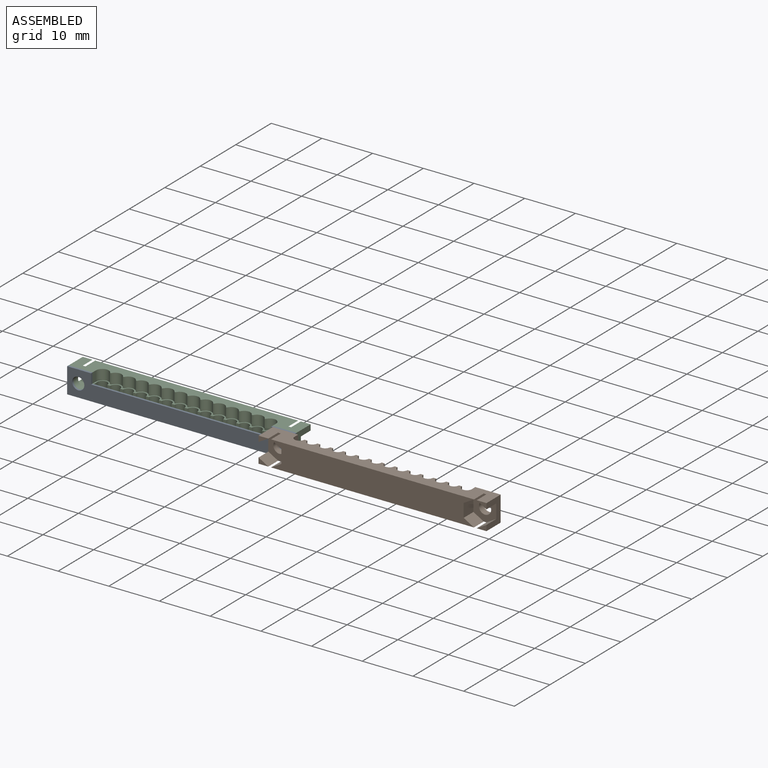
[diagram: assembled view]
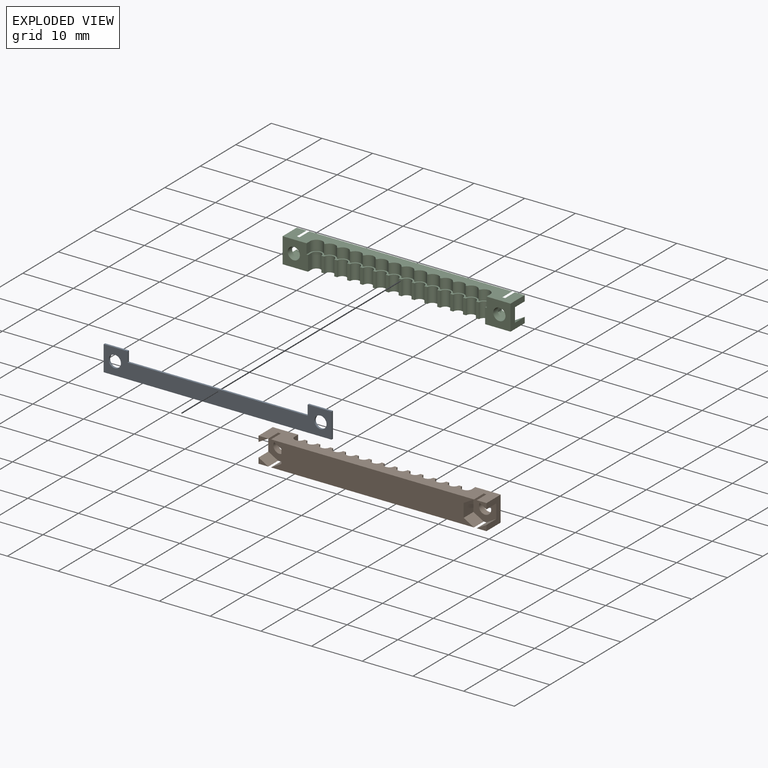
[diagram: exploded view]
GUIDED TOUR — MATED ASSEMBLY (Onshape document f2cbd46b93b3edd1e1eb403c, AutoMate assembly f2cbd46b93b3edd1e1eb403c_8484f095c61ec2286b9c4b33_8a40d567f7243d9332796a5d_default)

This assembly has 3 components, labeled P0..P2 below (a component is one placed occurrence of a part; the same part can appear more than once), held together by 2 mates. A mate is a constraint between two components; its type names the relative motion it leaves free:
  FASTENED — locks the two components together rigidly (no relative motion).
Axis/direction vectors are unit vectors and 'through' points are millimeter coordinates, both in the assembly's world frame.

MATES
  1. FASTENED "Fastened 1": P2 <-> P0, direction (0.000, -1.000, 0.000) through (-23.79, -25.65, -9.31) mm
  2. FASTENED "Fastened 2": P1 <-> P0, direction (0.000, 1.000, 0.000) through (16.77, -26.05, -9.31) mm

ASSEMBLY ORDER
  1. P1 — the base component [order verified]
  2. P0 [order verified]
  3. P2 [order verified]
Order-tag legend:
  [order verified] — this step's position reverses a verified removal order: the component was checked to insert without passing through the ones already placed.

Of the 3 components, 3 carry the full construction recipe — the FeatureScript program that regenerates the part's solid from scratch; the rest are supplied as boundary geometry only.
Each toured component is shown spotlighted twice — in the assembled view, then in the exploded view, where a leader line traces a displaced component back to its assembled socket (saturated green if recipe-attached, orange if geometry-only; every other component desaturated gray) — followed by its recipe or geometry summary and the mates that hold it.
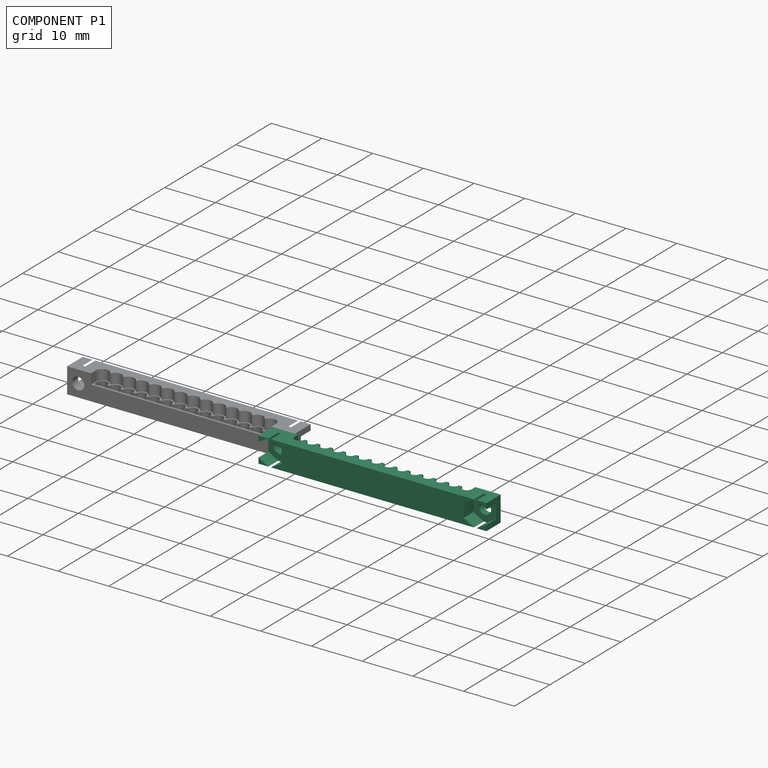
[diagram: component P1 — assembled]
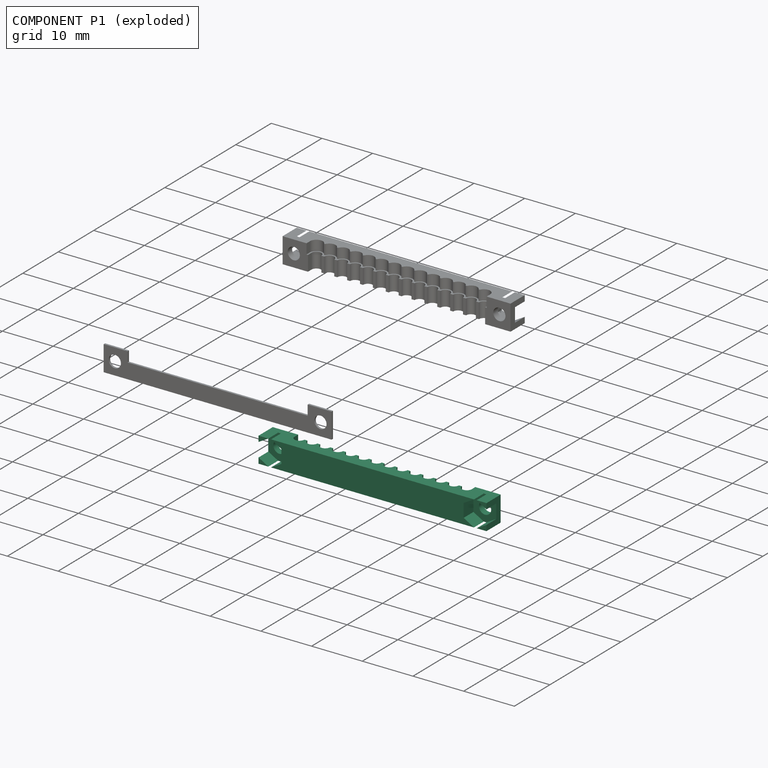
[diagram: component P1 — exploded]
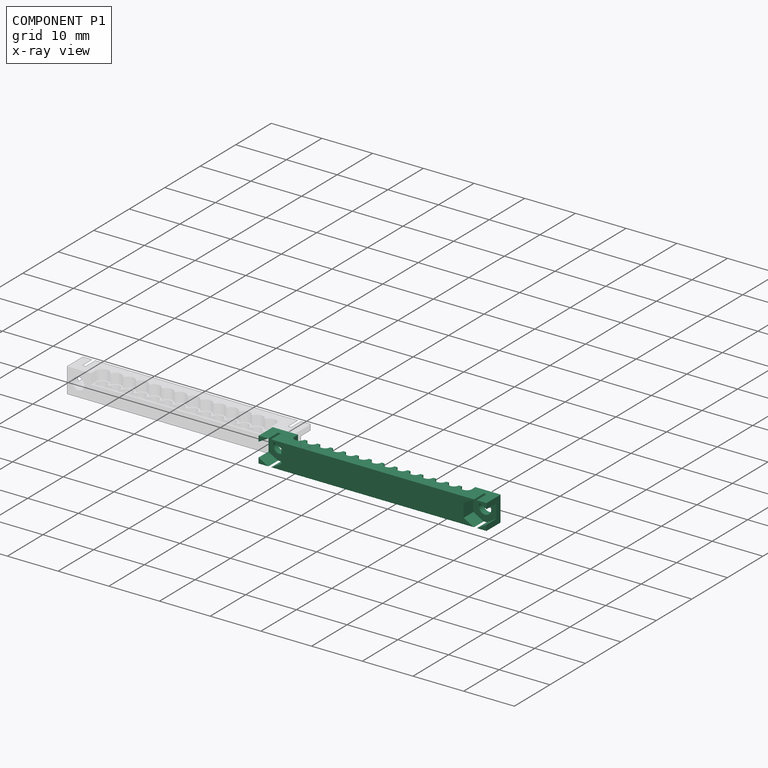
[diagram: component P1 — x-ray view]
COMPONENT P1 — recipe-attached (CADFS 00837993, mesh-verified: the recipe's output STEP matches this component's geometry to below the mesh-comparison resolution (tessellation chordal tolerance ~0.0681 mm)).
Held by: FASTENED mate "Fastened 2" to P0.
Construction recipe (FeatureScript — the CAD program that rebuilds this solid; sketch coordinates are in the units given by the * unit suffixes, e.g. mm):

FeatureScript 1511;
import(path : "onshape/std/geometry.fs", version : "1511.0");
import(path : "onshape/std/common.fs", version : "1511.0");
const mm = millimeter;
const VERTEX = EntityType.VERTEX;
const EDGE = EntityType.EDGE;
const FACE = EntityType.FACE;
const BODY = EntityType.BODY;
function v(x, y){return vector(x, y);}
function OD(order){return orderDisambiguation(order);}
function OSD(set){return originalSetDisambiguation(set);}
function TD(topology){return topologyDisambiguation(topology);}
function TDD(query){return trueDependencyDisambiguation(query);}
function sQuery(a, b, c) {return sketchEntityQuery(a, b, c);}

annotation { "Feature Type Name" : "Feature", "Feature Type Description" : "" }
export const myFeature = defineFeature(function(context is Context, id is Id, definition is map)
    precondition{}
    {
        {
            var Q0;
            Q0=qCreatedBy(makeId("Front.planeOp"),FACE);
            var sketch = newSketch(context, id + "F0", { "sketchPlane" : qUnion([Q0])});
            skCircle(sketch, "E0", {"center": v(-1.27, 1.27) * mm, "radius": 0.97 * mm});
            skCircle(sketch, "E1", {"center": v(1.27, 1.27) * mm, "radius": 0.97 * mm});
            skCircle(sketch, "E2", {"center": v(3.8, 1.27) * mm, "radius": 0.97 * mm});
            skCircle(sketch, "E3", {"center": v(6.35, 1.27) * mm, "radius": 0.97 * mm});
            skCircle(sketch, "E4", {"center": v(8.9, 1.27) * mm, "radius": 0.97 * mm});
            skCircle(sketch, "E5", {"center": v(11.43, 1.27) * mm, "radius": 0.97 * mm});
            skCircle(sketch, "E6", {"center": v(13.97, 1.27) * mm, "radius": 0.97 * mm});
            skCircle(sketch, "E7", {"center": v(16.51, 1.27) * mm, "radius": 0.97 * mm});
            skCircle(sketch, "E8", {"center": v(-3.8, 1.27) * mm, "radius": 0.97 * mm});
            skCircle(sketch, "E9", {"center": v(-6.35, 1.27) * mm, "radius": 0.97 * mm});
            skCircle(sketch, "E10", {"center": v(-8.9, 1.27) * mm, "radius": 0.97 * mm});
            skCircle(sketch, "E11", {"center": v(-11.43, 1.27) * mm, "radius": 0.97 * mm});
            skCircle(sketch, "E12", {"center": v(-13.97, 1.27) * mm, "radius": 0.97 * mm});
            skCircle(sketch, "E13", {"center": v(-16.51, 1.27) * mm, "radius": 0.97 * mm});
            skLineSegment(sketch, "E14.bottom", {"start": v(-22.48, 4.27) * mm, "end": v(22.48, 4.27) * mm});
            skLineSegment(sketch, "E14.top", {"start": v(-22.48, 1.27) * mm, "end": v(22.48, 1.27) * mm});
            skLineSegment(sketch, "E14.left", {"start": v(-22.48, 4.27) * mm, "end": v(-22.48, 1.27) * mm});
            skLineSegment(sketch, "E14.right", {"start": v(22.48, 4.27) * mm, "end": v(22.48, 1.27) * mm});
            skSolve(sketch);
        }
        {
            var Q0;
            Q0=makeQuery(id+"F0.imprint","IMPRINT",FACE,{"disambiguationData":[TD([[makeQuery(id+"F0.imprint","IMPRINT",EDGE,{"derivedFrom":sQuery(id+"F0.wireOp",EDGE,"E14.bottom")}),-1.0]])]});
            extrude(context, id + "F1", {"entities" : qUnion([Q0]), "depth" : 5 * mm, "offsetDistance" : 25 * mm});
        }
        {
            var Q0;
            Q0=makeQuery(id+"F1.opExtrude","CAP_FACE",FACE,{"disambiguationData":[OSD([sQuery(id+"F0.wireOp",EDGE,"E0"),sQuery(id+"F0.wireOp",EDGE,"E1"),sQuery(id+"F0.wireOp",EDGE,"E2"),sQuery(id+"F0.wireOp",EDGE,"E3"),sQuery(id+"F0.wireOp",EDGE,"E4"),sQuery(id+"F0.wireOp",EDGE,"E5"),sQuery(id+"F0.wireOp",EDGE,"E6"),sQuery(id+"F0.wireOp",EDGE,"E7"),sQuery(id+"F0.wireOp",EDGE,"E8"),sQuery(id+"F0.wireOp",EDGE,"E9"),sQuery(id+"F0.wireOp",EDGE,"E10"),sQuery(id+"F0.wireOp",EDGE,"E11"),sQuery(id+"F0.wireOp",EDGE,"E12"),sQuery(id+"F0.wireOp",EDGE,"E13"),sQuery(id+"F0.wireOp",EDGE,"E14.bottom"),sQuery(id+"F0.wireOp",EDGE,"E14.top"),sQuery(id+"F0.wireOp",EDGE,"E14.left"),sQuery(id+"F0.wireOp",EDGE,"E14.right")])],"isStart":false});
            var sketch = newSketch(context, id + "F2", { "sketchPlane" : qUnion([Q0])});
            skCircle(sketch, "E15", {"center": v(-16.51, 1.27) * mm, "radius": 1.25 * mm});
            skCircle(sketch, "E16", {"center": v(-13.97, 1.27) * mm, "radius": 1.25 * mm});
            skCircle(sketch, "E17", {"center": v(-11.43, 1.27) * mm, "radius": 1.25 * mm});
            skCircle(sketch, "E18", {"center": v(-8.9, 1.27) * mm, "radius": 1.25 * mm});
            skCircle(sketch, "E19", {"center": v(-6.35, 1.27) * mm, "radius": 1.25 * mm});
            skCircle(sketch, "E20", {"center": v(-3.8, 1.27) * mm, "radius": 1.25 * mm});
            skCircle(sketch, "E21", {"center": v(-1.27, 1.27) * mm, "radius": 1.25 * mm});
            skCircle(sketch, "E22", {"center": v(1.27, 1.27) * mm, "radius": 1.25 * mm});
            skCircle(sketch, "E23", {"center": v(3.8, 1.27) * mm, "radius": 1.25 * mm});
            skCircle(sketch, "E24", {"center": v(6.35, 1.27) * mm, "radius": 1.25 * mm});
            skCircle(sketch, "E25", {"center": v(8.9, 1.27) * mm, "radius": 1.25 * mm});
            skCircle(sketch, "E26", {"center": v(11.43, 1.27) * mm, "radius": 1.25 * mm});
            skCircle(sketch, "E27", {"center": v(13.97, 1.27) * mm, "radius": 1.25 * mm});
            skCircle(sketch, "E28", {"center": v(16.51, 1.27) * mm, "radius": 1.25 * mm});
            skLineSegment(sketch, "E29.bottom", {"start": v(-16.51, 1.27) * mm, "end": v(16.51, 1.27) * mm});
            skLineSegment(sketch, "E29.top", {"start": v(-16.51, 1.77) * mm, "end": v(16.51, 1.77) * mm});
            skLineSegment(sketch, "E29.left", {"start": v(-16.51, 1.27) * mm, "end": v(-16.51, 1.77) * mm});
            skLineSegment(sketch, "E29.right", {"start": v(16.51, 1.27) * mm, "end": v(16.51, 1.77) * mm});
            skSolve(sketch);
        }
        {
            var Q0;
            Q0 = qSketchRegion(id + "F2", true);
            extrude(context, id + "F3", {"entities" : qUnion([Q0]), "operationType" : NewBodyOperationType.REMOVE, "oppositeDirection" : true, "depth" : 2 * mm, "offsetDistance" : 25 * mm});
        }
        {
            var Q0;
            Q0=makeQuery(id+"F1.opExtrude","SWEPT_FACE",FACE,{"disambiguationData":[OSD([sQuery(id+"F0.wireOp",EDGE,"E14.bottom")])]});
            var sketch = newSketch(context, id + "F4", { "sketchPlane" : qUnion([Q0])});
            skCircle(sketch, "E30", {"center": v(20.28, -2.5) * mm, "radius": 2.3 * mm});
            skCircle(sketch, "E31", {"center": v(-20.28, -2.5) * mm, "radius": 2.3 * mm});
            skLineSegment(sketch, "E32", {"start": v(22.58, -3.83) * mm, "end": v(22.58, -1.17) * mm});
            skLineSegment(sketch, "E33", {"start": v(22.58, -1.17) * mm, "end": v(20.28, 0.16) * mm});
            skLineSegment(sketch, "E34", {"start": v(20.28, 0.16) * mm, "end": v(17.98, -1.17) * mm});
            skLineSegment(sketch, "E35", {"start": v(17.98, -1.17) * mm, "end": v(17.98, -3.83) * mm});
            skLineSegment(sketch, "E36", {"start": v(17.98, -3.83) * mm, "end": v(20.28, -5.16) * mm});
            skLineSegment(sketch, "E37", {"start": v(20.28, -5.16) * mm, "end": v(22.58, -3.83) * mm});
            skLineSegment(sketch, "E38", {"start": v(-22.58, -1.17) * mm, "end": v(-22.58, -3.83) * mm});
            skLineSegment(sketch, "E39", {"start": v(-22.58, -3.83) * mm, "end": v(-20.28, -5.16) * mm});
            skLineSegment(sketch, "E40", {"start": v(-20.28, -5.16) * mm, "end": v(-17.98, -3.83) * mm});
            skLineSegment(sketch, "E41", {"start": v(-17.98, -3.83) * mm, "end": v(-17.98, -1.17) * mm});
            skLineSegment(sketch, "E42", {"start": v(-17.98, -1.17) * mm, "end": v(-20.28, 0.16) * mm});
            skLineSegment(sketch, "E43", {"start": v(-20.28, 0.16) * mm, "end": v(-22.58, -1.17) * mm});
            skSolve(sketch);
        }
        {
            var Q0;
            Q0 = qSketchRegion(id + "F4", true);
            extrude(context, id + "F5", {"entities" : qUnion([Q0]), "operationType" : NewBodyOperationType.REMOVE, "oppositeDirection" : true, "depth" : 2.75 * mm, "offsetDistance" : 25 * mm});
        }
        {
            var Q0;
            Q0=qCreatedBy(makeId("Top.planeOp"),FACE);
            var sketch = newSketch(context, id + "F6", { "sketchPlane" : qUnion([Q0])});
            skCircle(sketch, "E44", {"center": v(-20.28, -2.5) * mm, "radius": 1.2 * mm});
            skCircle(sketch, "E45", {"center": v(20.28, -2.5) * mm, "radius": 1.2 * mm});
            skSolve(sketch);
        }
        {
            var Q0;
            Q0=makeQuery(id+"F6.imprint","IMPRINT",FACE,{"disambiguationData":[TD([[makeQuery(id+"F6.imprint","IMPRINT",EDGE,{"derivedFrom":sQuery(id+"F6.wireOp",EDGE,"E44")}),1.0]])]});
            var Q1;
            Q1=makeQuery(id+"F6.imprint","IMPRINT",FACE,{"disambiguationData":[TD([[makeQuery(id+"F6.imprint","IMPRINT",EDGE,{"derivedFrom":sQuery(id+"F6.wireOp",EDGE,"E45")}),1.0]])]});
            extrude(context, id + "F7", {"entities" : qUnion([Q0, Q1]), "operationType" : NewBodyOperationType.REMOVE, "oppositeDirection" : true, "depth" : -5 * mm, "offsetDistance" : 25 * mm});
        }
        {
            var Q0;
            {var subQ0=sQuery(id+"F0.wireOp",EDGE,"E14.top");Q0=makeQuery(id+"F1.opExtrude","SWEPT_FACE",FACE,{"disambiguationData":[OSD([subQ0]),TDD([makeQuery(id+"F0.imprint","IMPRINT",EDGE,{"disambiguationData":[TD([[makeQuery(id+"F0.imprint","INTERSECT",VERTEX,{"derivedFrom":[subQ0,sQuery(id+"F0.wireOp",EDGE,"E14.left")]}),-1.0]])],"derivedFrom":subQ0})])]});}
            var Q1;
            {var subQ0=sQuery(id+"F0.wireOp",EDGE,"E14.top");Q1=makeQuery(id+"F1.opExtrude","SWEPT_FACE",FACE,{"disambiguationData":[OSD([subQ0]),TDD([makeQuery(id+"F0.imprint","IMPRINT",EDGE,{"disambiguationData":[TD([[makeQuery(id+"F0.imprint","INTERSECT",VERTEX,{"derivedFrom":[subQ0,sQuery(id+"F0.wireOp",EDGE,"E14.right")]}),1.0]])],"derivedFrom":subQ0})])]});}
            extrude(context, id + "F8", {"entities" : qUnion([Q0, Q1]), "operationType" : NewBodyOperationType.ADD, "depth" : 1 * mm, "offsetDistance" : 25 * mm});
        }
    });
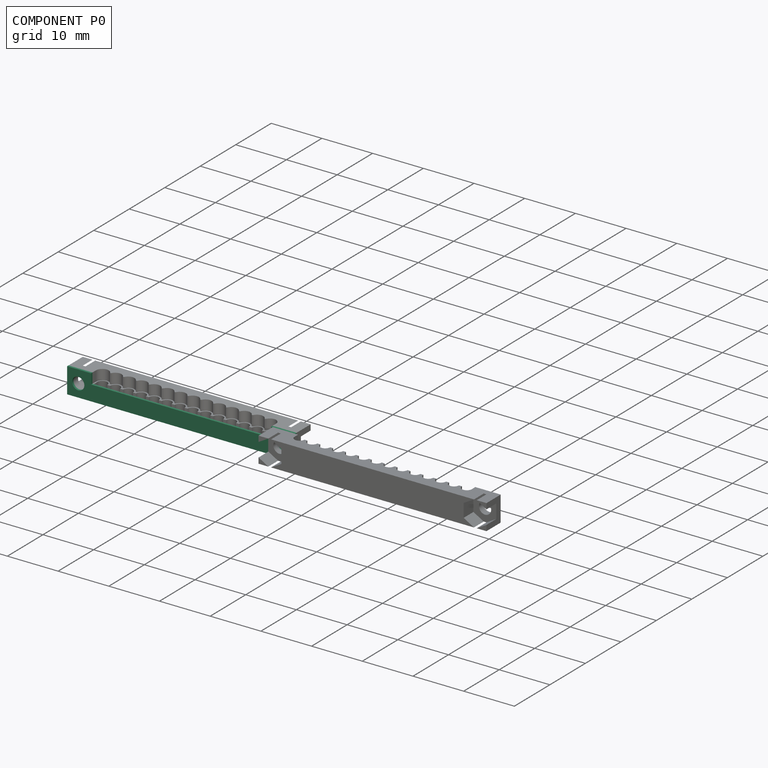
[diagram: component P0 — assembled]
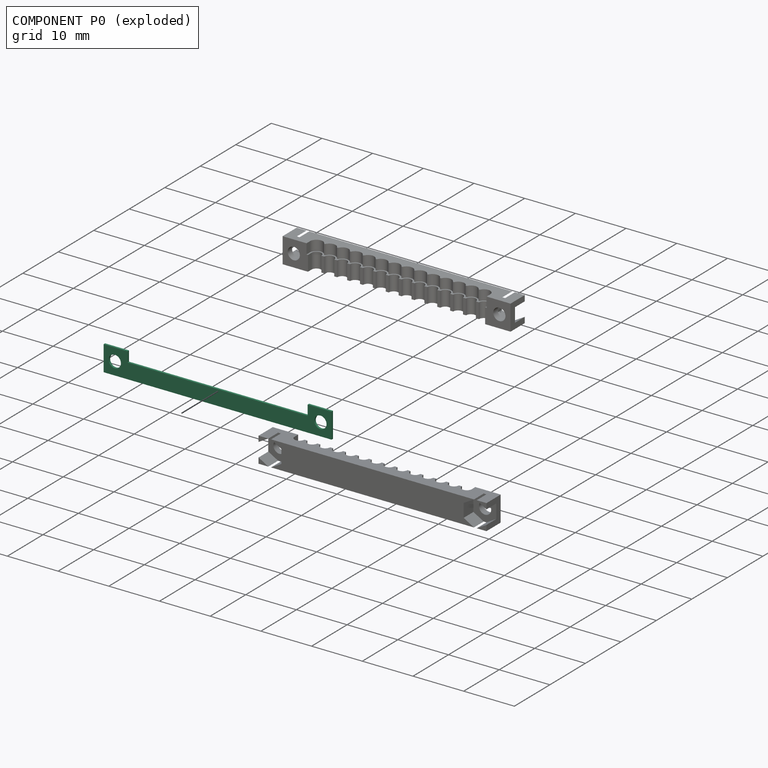
[diagram: component P0 — exploded]
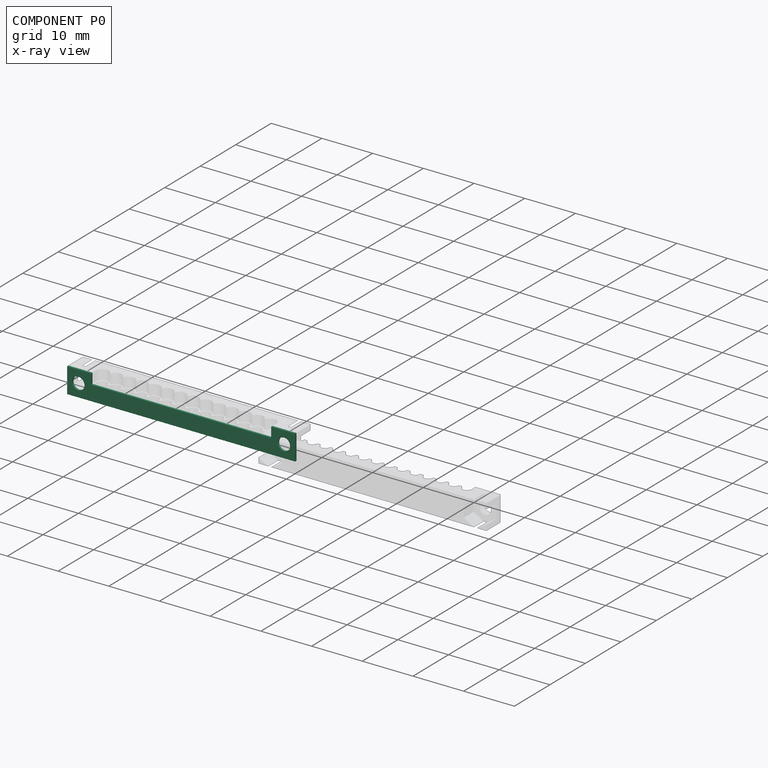
[diagram: component P0 — x-ray view]
COMPONENT P0 — recipe-attached (CADFS 00840917, mesh-verified: the recipe's output STEP matches this component's geometry to below the mesh-comparison resolution (tessellation chordal tolerance ~0.0679 mm)).
Held by: FASTENED mate "Fastened 1" to P2; FASTENED mate "Fastened 2" to P1.
Construction recipe (FeatureScript — the CAD program that rebuilds this solid; sketch coordinates are in the units given by the * unit suffixes, e.g. mm):

FeatureScript 1511;
import(path : "onshape/std/geometry.fs", version : "1511.0");
import(path : "onshape/std/common.fs", version : "1511.0");
const mm = millimeter;
const VERTEX = EntityType.VERTEX;
const EDGE = EntityType.EDGE;
const FACE = EntityType.FACE;
const BODY = EntityType.BODY;
function v(x, y){return vector(x, y);}
function OD(order){return orderDisambiguation(order);}
function OSD(set){return originalSetDisambiguation(set);}
function TD(topology){return topologyDisambiguation(topology);}
function TDD(query){return trueDependencyDisambiguation(query);}
function sQuery(a, b, c) {return sketchEntityQuery(a, b, c);}

annotation { "Feature Type Name" : "Feature", "Feature Type Description" : "" }
export const myFeature = defineFeature(function(context is Context, id is Id, definition is map)
    precondition{}
    {
        {
            var Q0;
            Q0=qCreatedBy(makeId("Front.planeOp"),FACE);
            var sketch = newSketch(context, id + "F0", { "sketchPlane" : qUnion([Q0])});
            skCircle(sketch, "E0", {"center": v(-20.28, 0) * mm, "radius": 1.2 * mm});
            skCircle(sketch, "E1", {"center": v(20.28, 0) * mm, "radius": 1.2 * mm});
            skLineSegment(sketch, "E2.bottom", {"start": v(-22.48, 2.5) * mm, "end": v(22.48, 2.5) * mm});
            skLineSegment(sketch, "E2.top", {"start": v(-22.48, -2.5) * mm, "end": v(22.48, -2.5) * mm});
            skLineSegment(sketch, "E2.left", {"start": v(-22.48, 2.5) * mm, "end": v(-22.48, -2.5) * mm});
            skLineSegment(sketch, "E2.right", {"start": v(22.48, 2.5) * mm, "end": v(22.48, -2.5) * mm});
            skLineSegment(sketch, "E3.bottom", {"start": v(-17.76, 2.5) * mm, "end": v(17.76, 2.5) * mm});
            skLineSegment(sketch, "E3.top", {"start": v(-17.76, 0.5) * mm, "end": v(17.76, 0.5) * mm});
            skLineSegment(sketch, "E3.left", {"start": v(-17.76, 2.5) * mm, "end": v(-17.76, 0.5) * mm});
            skLineSegment(sketch, "E3.right", {"start": v(17.76, 2.5) * mm, "end": v(17.76, 0.5) * mm});
            skSolve(sketch);
        }
        {
            var Q0;
            Q0=makeQuery(id+"F0.imprint","IMPRINT",FACE,{"disambiguationData":[TD([[makeQuery(id+"F0.imprint","IMPRINT",EDGE,{"derivedFrom":sQuery(id+"F0.wireOp",EDGE,"E0")}),-1.0]])]});
            extrude(context, id + "F1", {"entities" : qUnion([Q0]), "depth" : 0.4 * mm, "offsetDistance" : 25 * mm});
        }
    });
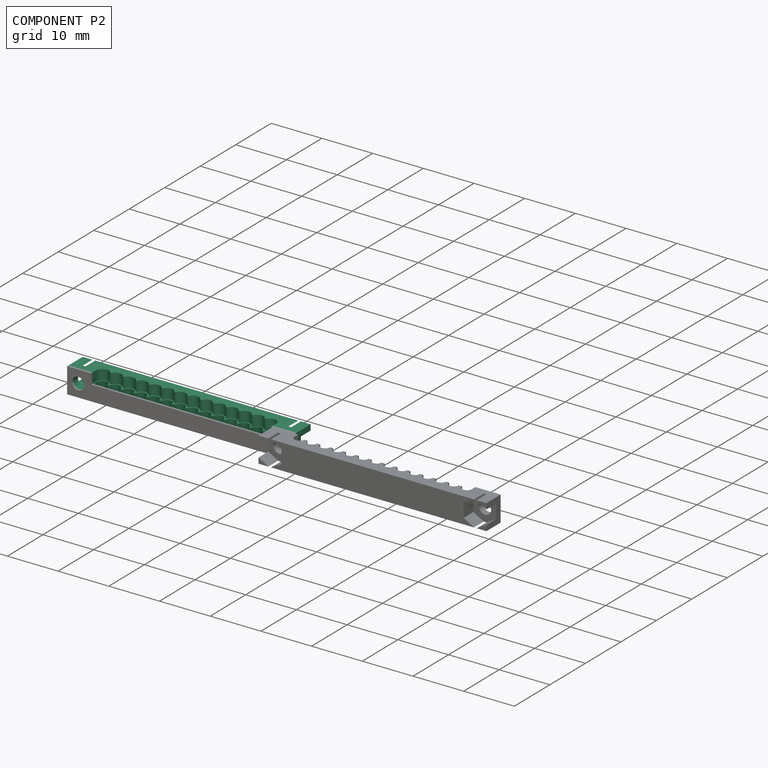
[diagram: component P2 — assembled]
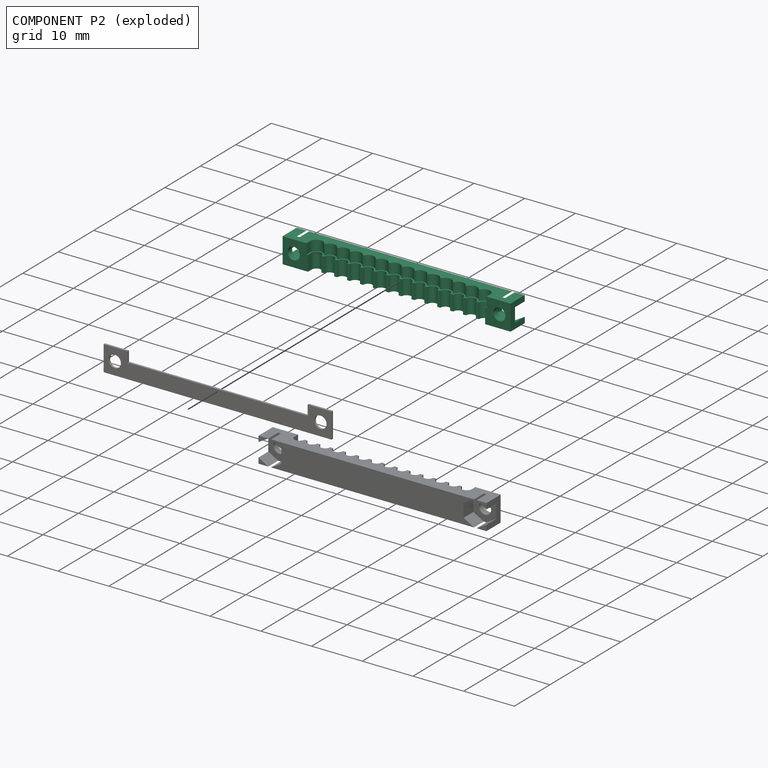
[diagram: component P2 — exploded]
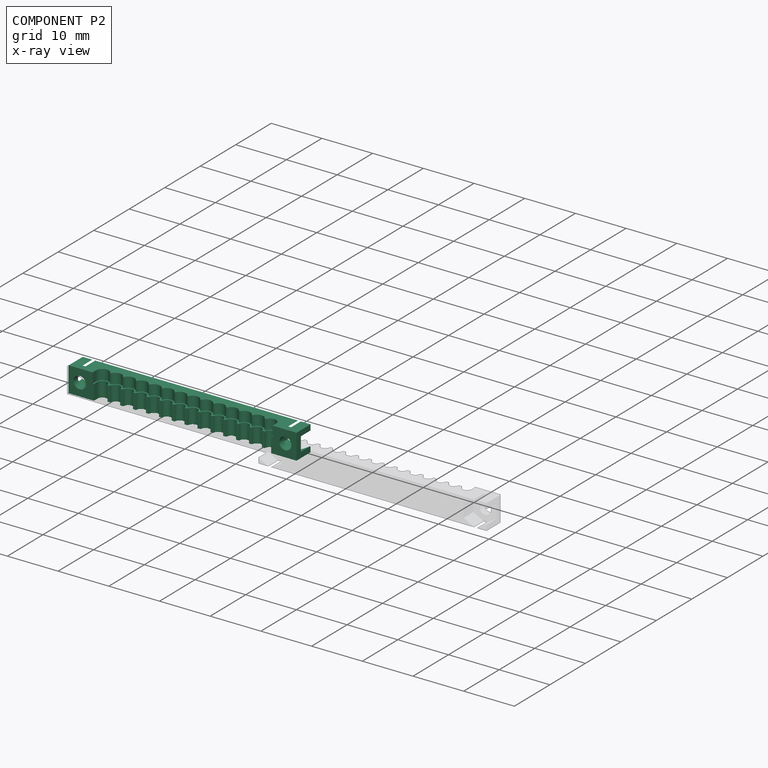
[diagram: component P2 — x-ray view]
COMPONENT P2 — same part as P1 (CADFS 00837993); its construction recipe is shown at P1.
Held by: FASTENED mate "Fastened 1" to P0.
PROVENANCE & LICENSES
Assembly (occurrences, transforms, mates, per-part STEP geometry): AutoMate dataset, Zenodo record 7776208, CC0.
Construction recipes: CADFS (HuggingFace VladPyatov/CADFS, CC-BY-4.0, layered over the ABC dataset), FeatureScript reconstruction programs keyed by ABC model id.
Join: ABC meta listings map ABC model id -> Onshape documentId; within a shared document, parts are matched by geometric signature (bounding-box dims + volume at 0.1% relative tolerance, exact B-rep face/solid counts).
Verification: 3 of this assembly's 3 components carry a recipe attachment, and every attachment is mesh-verified: the CADFS STEP and the AutoMate member STEP were compared as meshes in their shared local frame (symmetric sampled-point-to-mesh distance); worst across the 3 attachments: below the mesh-comparison resolution (tessellation chordal tolerance ~0.0681 mm) on a 45 mm part.
Renders: orthographic iso camera (az 35 / el 25); the floor grid conveys scale (grid pitch printed in each image; no ruler). In the exploded view each component is displaced by its stored offset vector: the offsets alone carry the explosion direction (mate normal/axis signs are not orientation cues and do not encode it), and separation distances are assigned per mate-chain, not proportionally to assembly-order depth.
